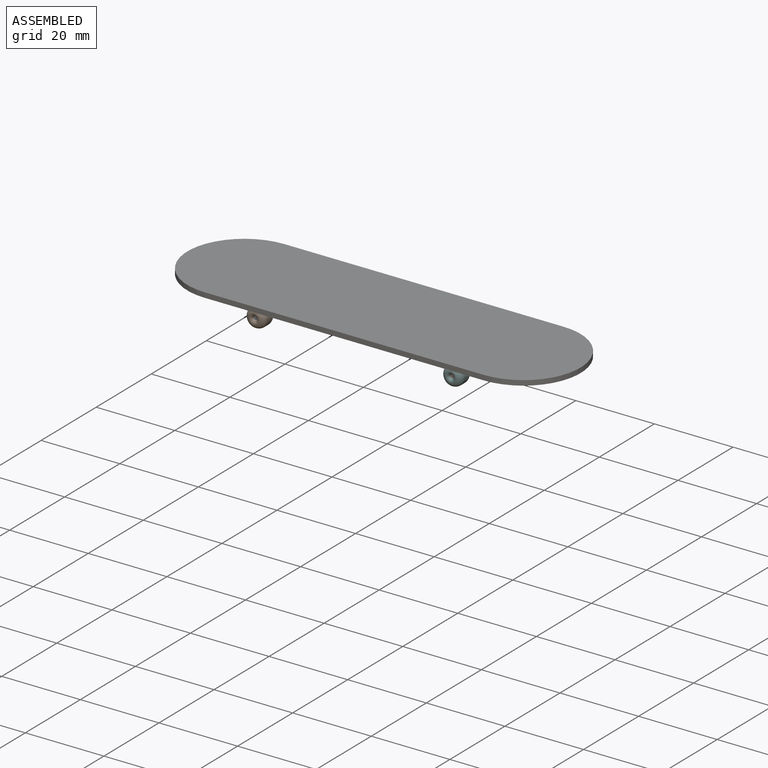
[diagram: assembled view]
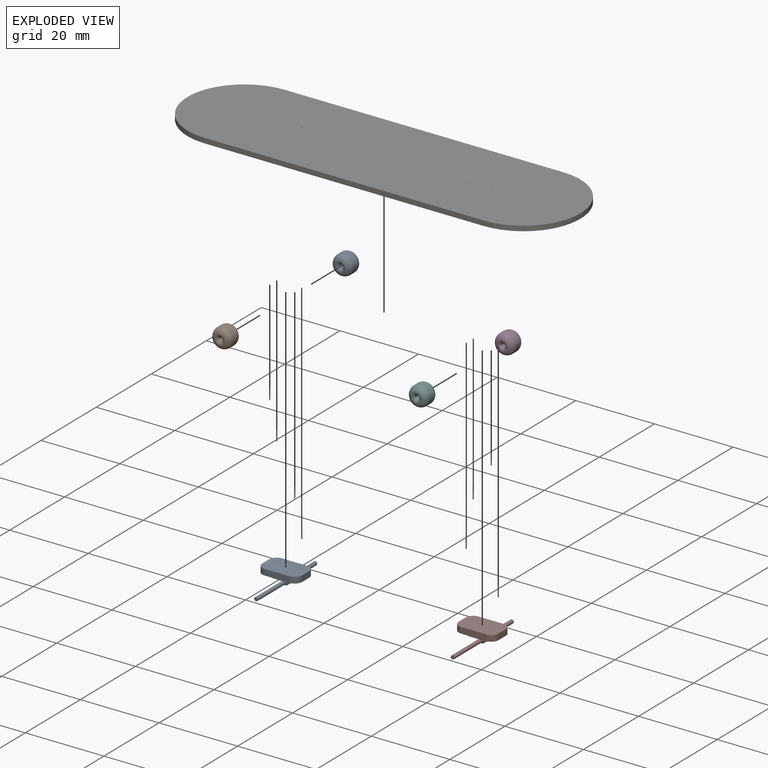
[diagram: exploded view]
GUIDED TOUR — MATED ASSEMBLY (Onshape document f7ee4788c4240e8c17292e89, AutoMate assembly f7ee4788c4240e8c17292e89_a5b2ad27e52c4ec92fd8eeb3_edc7ae30c938dc5633ede1cf_default)

This assembly has 15 components, labeled P0..P14 below (a component is one placed occurrence of a part; the same part can appear more than once), held together by 20 mates. A mate is a constraint between two components; its type names the relative motion it leaves free:
  FASTENED — locks the two components together rigidly (no relative motion),
  REVOLUTE — leaves rotation about the listed axis free (a hinge).
Axis/direction vectors are unit vectors and 'through' points are millimeter coordinates, both in the assembly's world frame.

MATES
  1. FASTENED "Fastened 5": P7 <-> P13, direction (0.000, 0.000, -1.000) through (-2.57, 7.27, 27.58) mm
  2. FASTENED "Fastened 15": P0 <-> P2, direction (0.000, 0.000, -1.000) through (-52.57, 9.81, 27.58) mm
  3. REVOLUTE "Revolute 3": P9 <-> P0, axis (0.000, 1.000, 0.000) through (-55.74, -2.25, 25.88) mm
  4. FASTENED "Fastened 14": P0 <-> P12, direction (0.000, 0.000, -1.000) through (-58.92, 7.27, 27.58) mm
  5. FASTENED "Fastened 7": P7 <-> P6, direction (0.000, 0.000, -1.000) through (-8.92, 7.27, 27.58) mm
  6. FASTENED "Fastened 10": P12 <-> P14, direction (0.000, 0.000, 1.000) through (-58.92, 7.27, 30.37) mm
  7. FASTENED "Fastened 3": P10 <-> P14, direction (0.000, 0.000, 1.000) through (-8.92, 9.81, 30.37) mm
  8. FASTENED "Fastened 9": P4 <-> P14, direction (0.000, 0.000, 1.000) through (-58.92, 9.81, 30.37) mm
  9. FASTENED "Fastened 8": P7 <-> P10, direction (0.000, 0.000, -1.000) through (-8.92, 9.81, 27.58) mm
  10. REVOLUTE "Revolute 1": P8 <-> P0, axis (0.000, 1.000, 0.000) through (-55.74, 19.34, 25.93) mm
  11. FASTENED "Fastened 11": P14 <-> P3, direction (0.000, 0.000, 1.000) through (-52.57, 7.27, 30.37) mm
  12. FASTENED "Fastened 4": P6 <-> P14, direction (0.000, 0.000, 1.000) through (-8.92, 7.27, 30.37) mm
  13. FASTENED "Fastened 16": P0 <-> P3, direction (0.000, 0.000, -1.000) through (-52.57, 7.27, 27.58) mm
  14. REVOLUTE "Revolute 4": P5 <-> P7, axis (0.000, 1.000, 0.000) through (-5.74, -2.25, 25.88) mm
  15. REVOLUTE "Revolute 2": P11 <-> P7, axis (0.000, 1.000, 0.000) through (-5.74, 19.34, 25.93) mm
  16. FASTENED "Fastened 1": P14 <-> P1, direction (0.000, 0.000, 1.000) through (-2.57, 9.81, 30.37) mm
  17. FASTENED "Fastened 12": P2 <-> P14, direction (0.000, 0.000, 1.000) through (-52.57, 9.81, 30.37) mm
  18. FASTENED "Fastened 13": P0 <-> P4, direction (0.000, 0.000, -1.000) through (-58.92, 9.81, 27.58) mm
  19. FASTENED "Fastened 6": P7 <-> P1, direction (0.000, 0.000, -1.000) through (-2.57, 9.81, 27.58) mm
  20. FASTENED "Fastened 2": P13 <-> P14, direction (0.000, 0.000, 1.000) through (-2.57, 7.27, 30.37) mm

ASSEMBLY ORDER
  1. P11 — the base component [order verified]
  2. P8 [order verified]
  3. P7 [order verified]
  4. P0 [order verified]
  5. P9 [order verified]
  6. P5 [order verified]
  7. P12 [order verified]
  8. P4 [order verified]
  9. P3 [order verified]
  10. P2 [order verified]
  11. P13 [order verified]
  12. P10 [order verified]
  13. P6 [order verified]
  14. P1 [order verified]
  15. P14 [order verified]
Order-tag legend:
  [order verified] — this step's position reverses a verified removal order: the component was checked to insert without passing through the ones already placed.

Of the 15 components, 8 carry the full construction recipe — the FeatureScript program that regenerates the part's solid from scratch; the rest are supplied as boundary geometry only.
Because this assembly has more than 12 components, the tour below covers the 12 most significant ones individually (every recipe-attached component first, then the largest by part volume), in assembly order; the remaining 3 are summarized together in a grouped section at the end.
Each toured component is shown spotlighted twice — in the assembled view, then in the exploded view, where a leader line traces a displaced component back to its assembled socket (saturated green if recipe-attached, orange if geometry-only; every other component desaturated gray) — followed by its recipe or geometry summary and the mates that hold it.
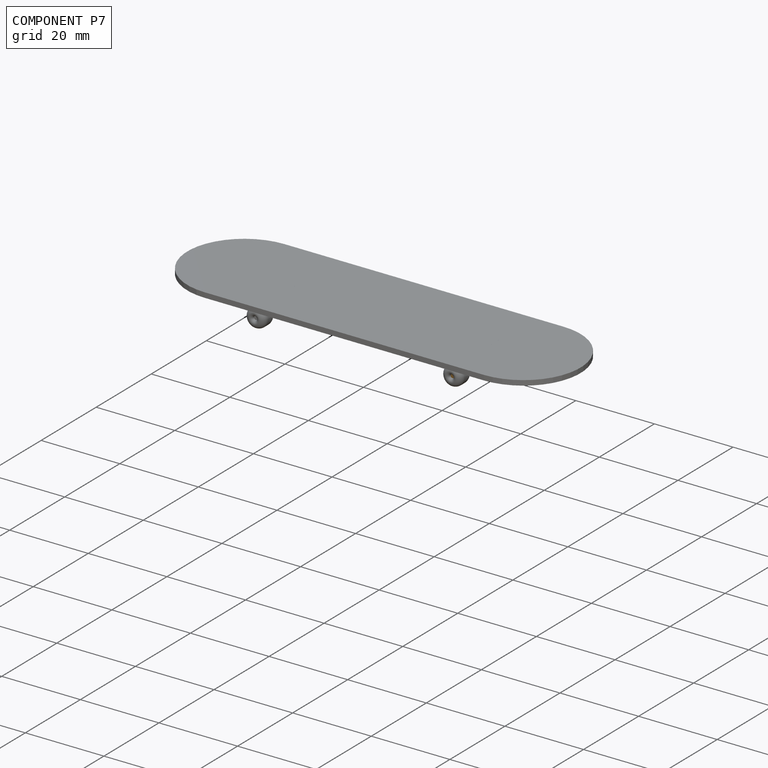
[diagram: component P7 — assembled]
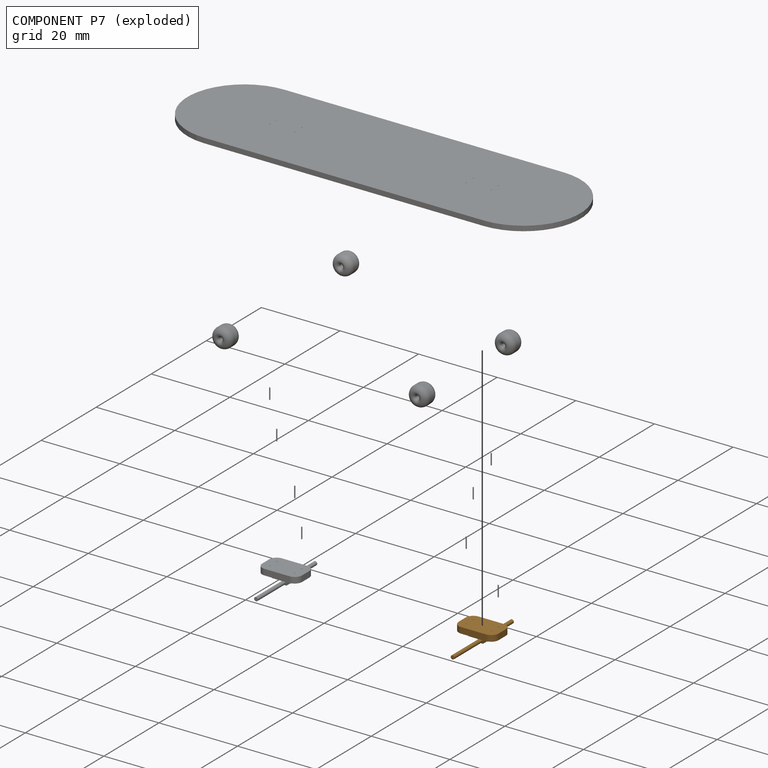
[diagram: component P7 — exploded]
COMPONENT P7 — geometry summary (no construction recipe available for this part):
  bounding box: 21.6 x 10.2 x 3.8 mm
  B-rep topology: 1 solid, 28 faces, 132 edges
  volume: 125 mm^3 (15% of its bounding box)
  symmetry: 2-fold rotationally symmetric about the z axis; mirror-symmetric across its x mid-plane, y mid-plane
Held by: FASTENED mate "Fastened 5" to P13; FASTENED mate "Fastened 7" to P6; FASTENED mate "Fastened 8" to P10; REVOLUTE mate "Revolute 4" to P5; REVOLUTE mate "Revolute 2" to P11; FASTENED mate "Fastened 6" to P1.
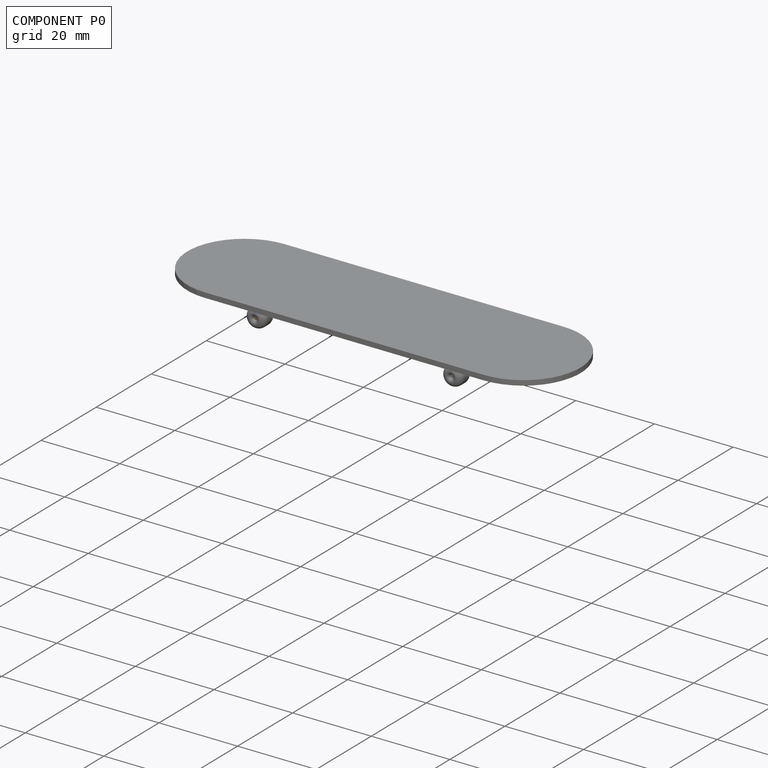
[diagram: component P0 — assembled]
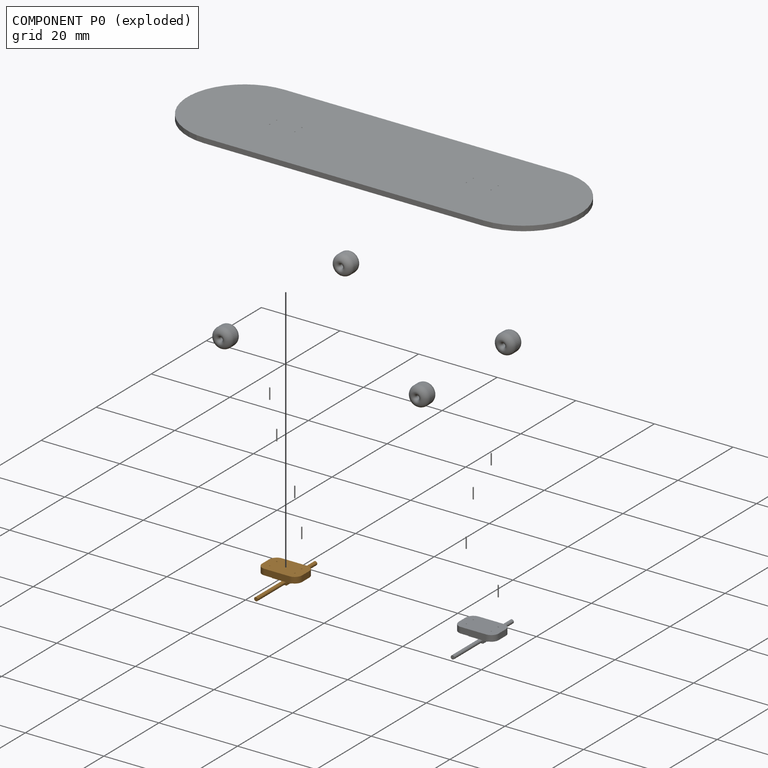
[diagram: component P0 — exploded]
COMPONENT P0 — geometry summary (no construction recipe available for this part):
  bounding box: 21.6 x 10.2 x 3.8 mm
  B-rep topology: 1 solid, 28 faces, 132 edges
  volume: 125 mm^3 (15% of its bounding box)
  symmetry: 2-fold rotationally symmetric about the z axis; mirror-symmetric across its x mid-plane, y mid-plane
Held by: FASTENED mate "Fastened 15" to P2; REVOLUTE mate "Revolute 3" to P9; FASTENED mate "Fastened 14" to P12; REVOLUTE mate "Revolute 1" to P8; FASTENED mate "Fastened 16" to P3; FASTENED mate "Fastened 13" to P4.
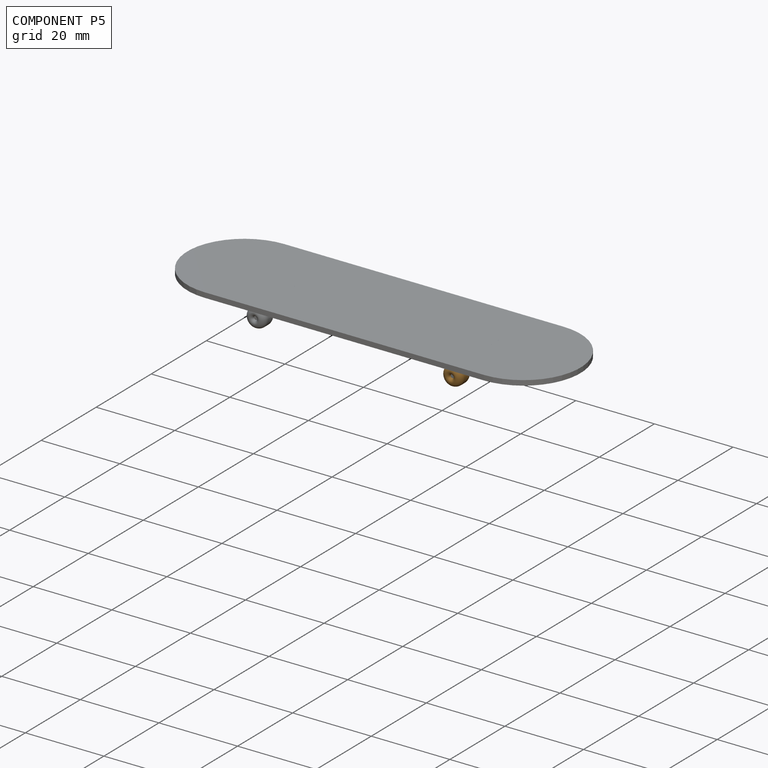
[diagram: component P5 — assembled]
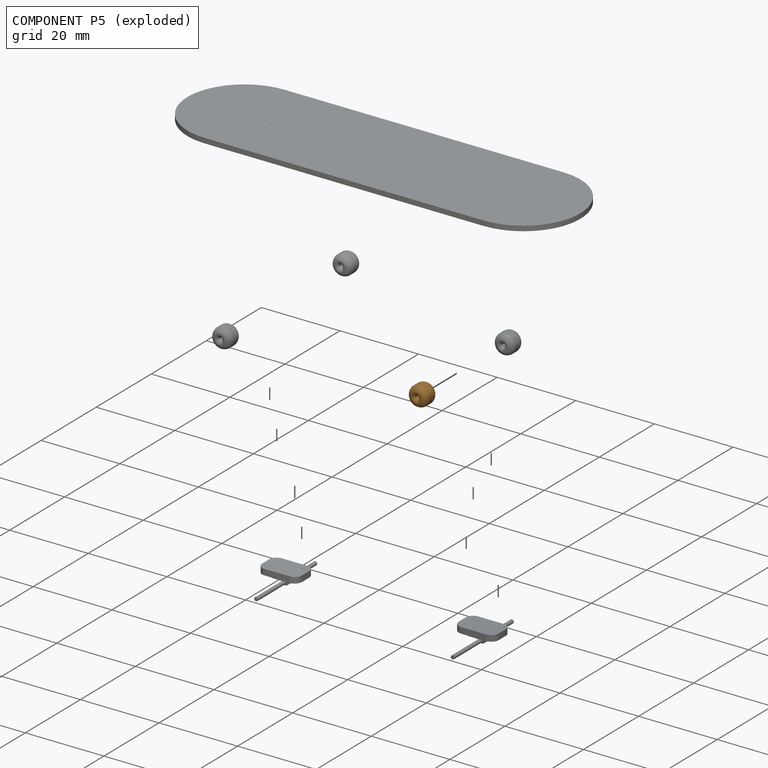
[diagram: component P5 — exploded]
COMPONENT P5 — geometry summary (no construction recipe available for this part):
  bounding box: 5.1 x 5.1 x 4.4 mm
  B-rep topology: 1 solid, 6 faces, 26 edges
  volume: 72 mm^3 (64% of its bounding box)
  symmetry: revolution-symmetric about the x axis through its bounding-box center; 2-fold rotationally symmetric about the y axis; 2-fold rotationally symmetric about the z axis; mirror-symmetric across its x mid-plane, y mid-plane, z mid-plane
Held by: REVOLUTE mate "Revolute 4" to P7.
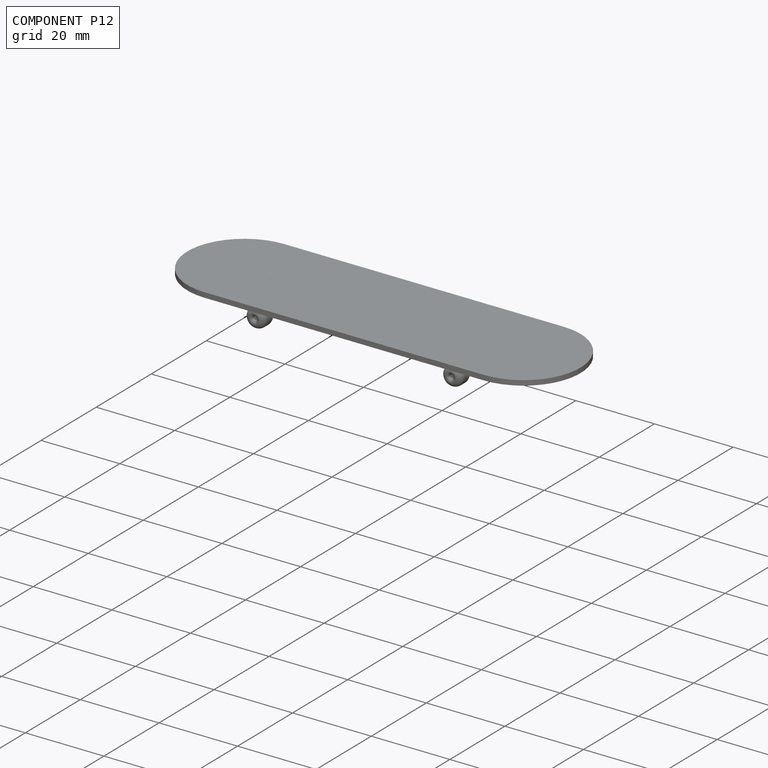
[diagram: component P12 — assembled]
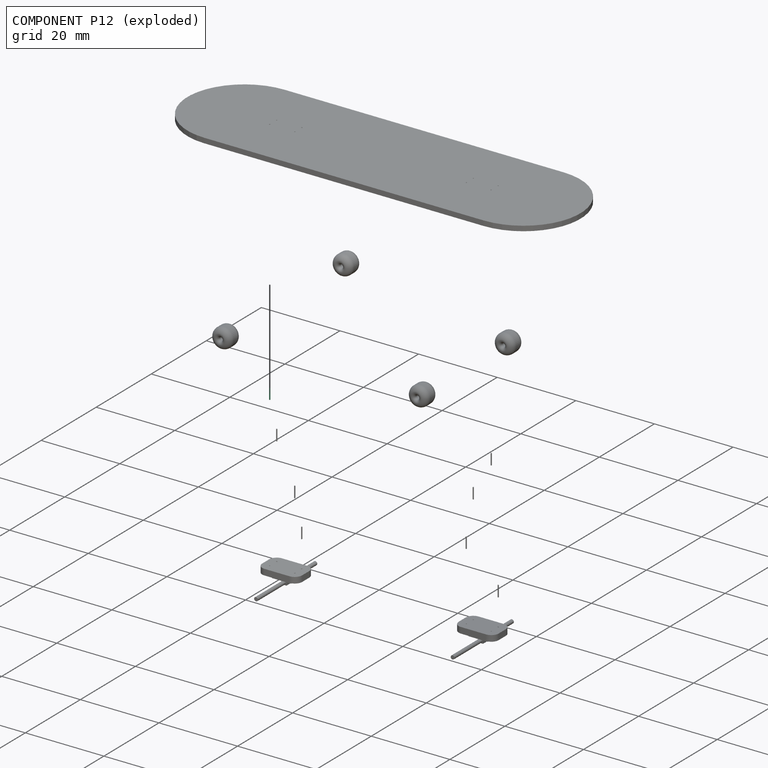
[diagram: component P12 — exploded]
COMPONENT P12 — same part as P1 (CADFS 00727369); its construction recipe is shown at P1.
Held by: FASTENED mate "Fastened 14" to P0; FASTENED mate "Fastened 10" to P14.
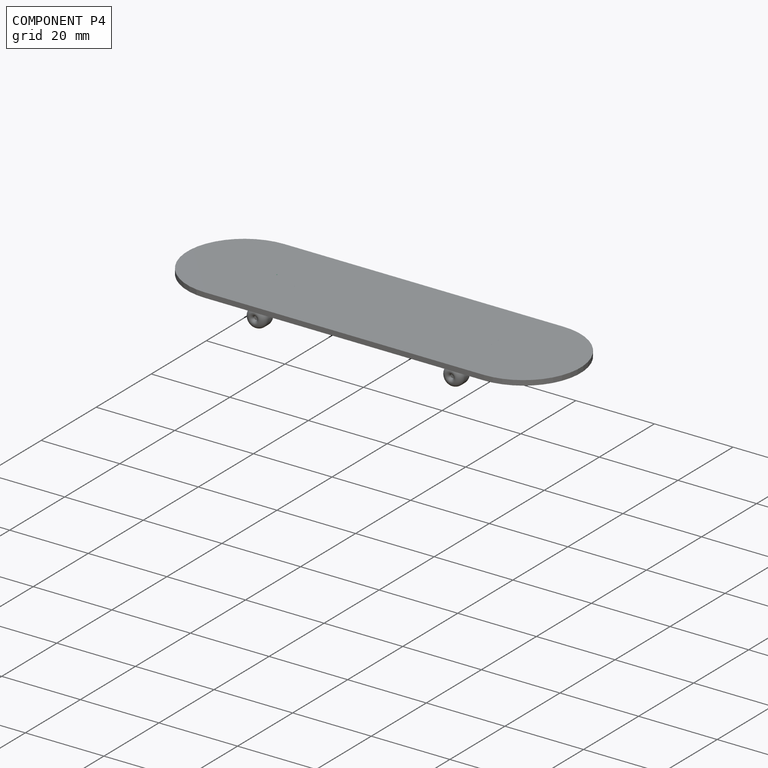
[diagram: component P4 — assembled]
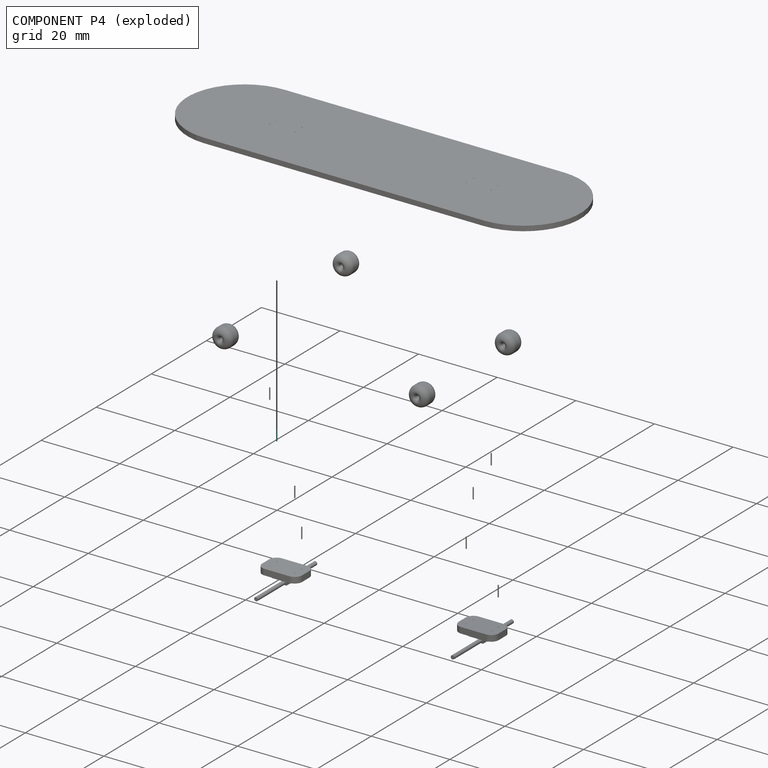
[diagram: component P4 — exploded]
COMPONENT P4 — same part as P1 (CADFS 00727369); its construction recipe is shown at P1.
Held by: FASTENED mate "Fastened 9" to P14; FASTENED mate "Fastened 13" to P0.
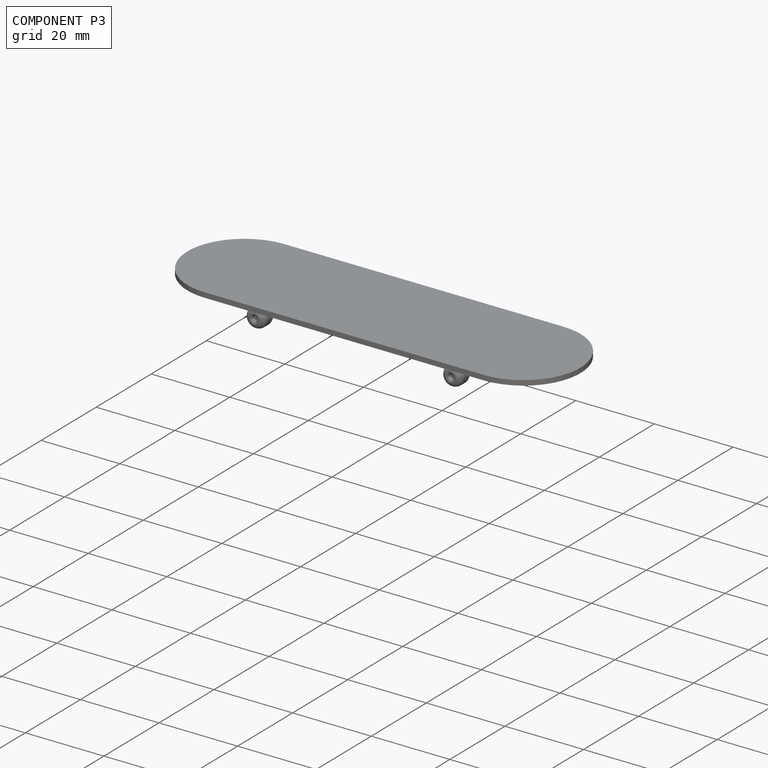
[diagram: component P3 — assembled]
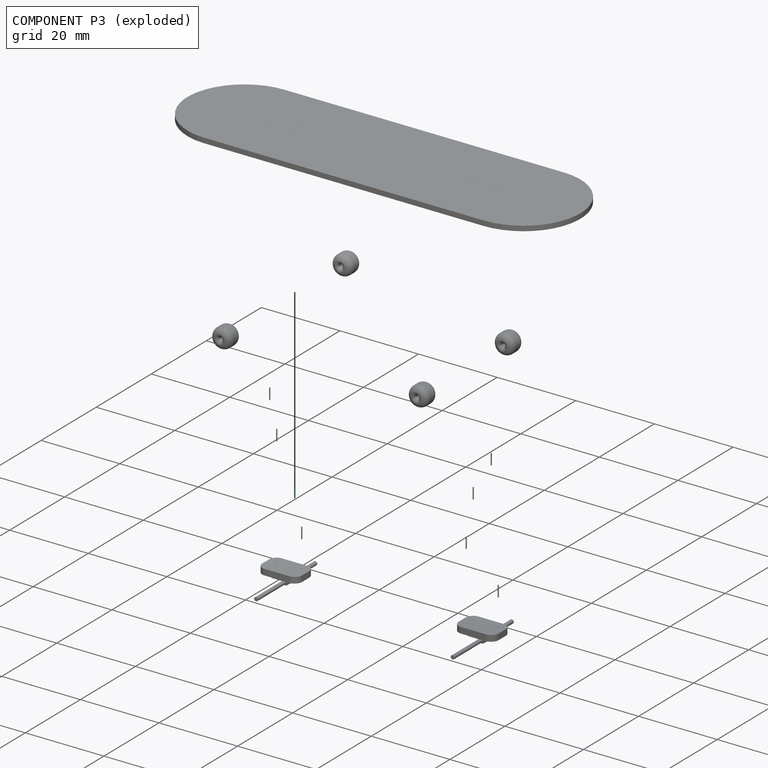
[diagram: component P3 — exploded]
COMPONENT P3 — same part as P1 (CADFS 00727369); its construction recipe is shown at P1.
Held by: FASTENED mate "Fastened 11" to P14; FASTENED mate "Fastened 16" to P0.
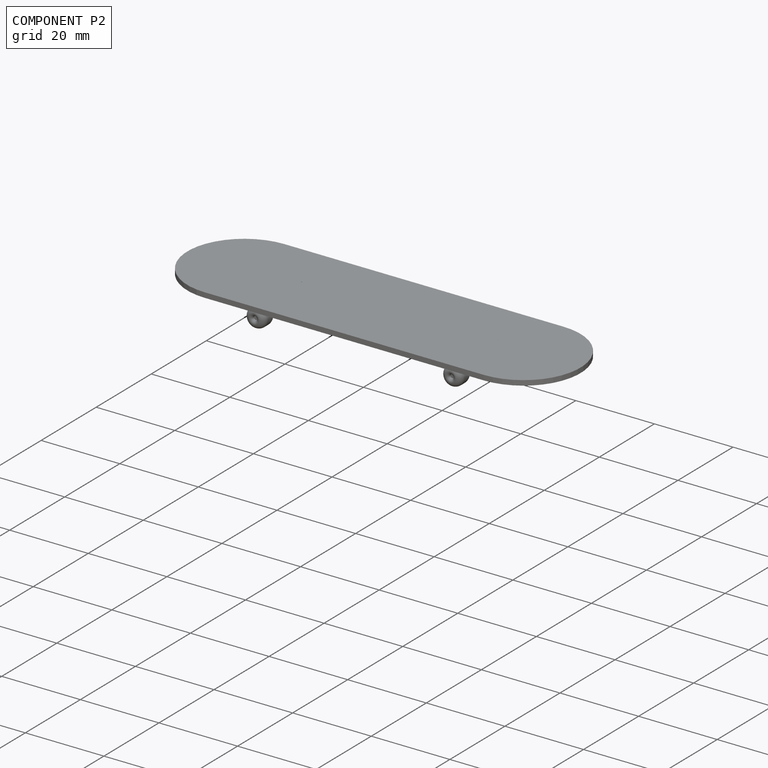
[diagram: component P2 — assembled]
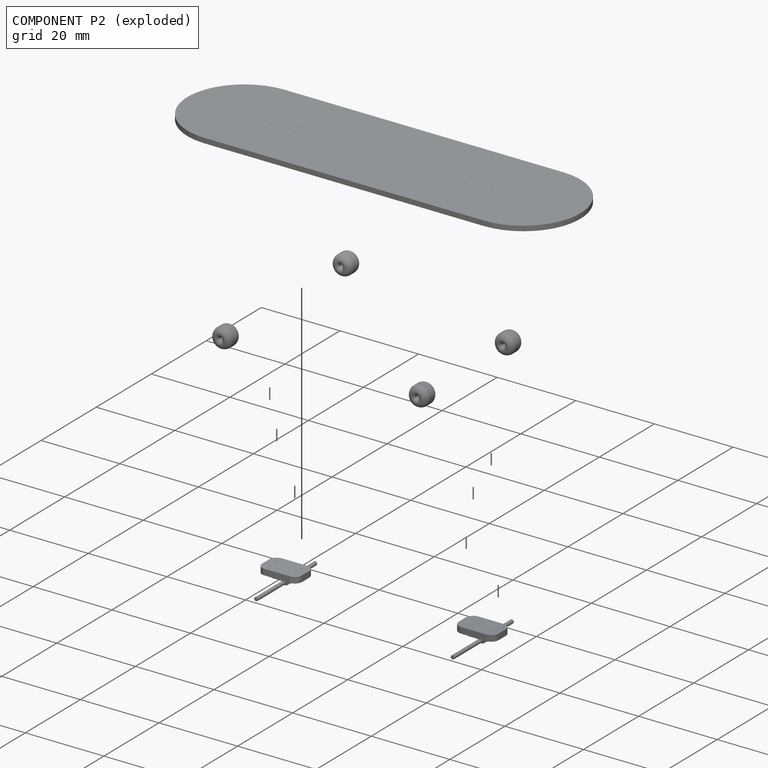
[diagram: component P2 — exploded]
COMPONENT P2 — same part as P1 (CADFS 00727369); its construction recipe is shown at P1.
Held by: FASTENED mate "Fastened 15" to P0; FASTENED mate "Fastened 12" to P14.
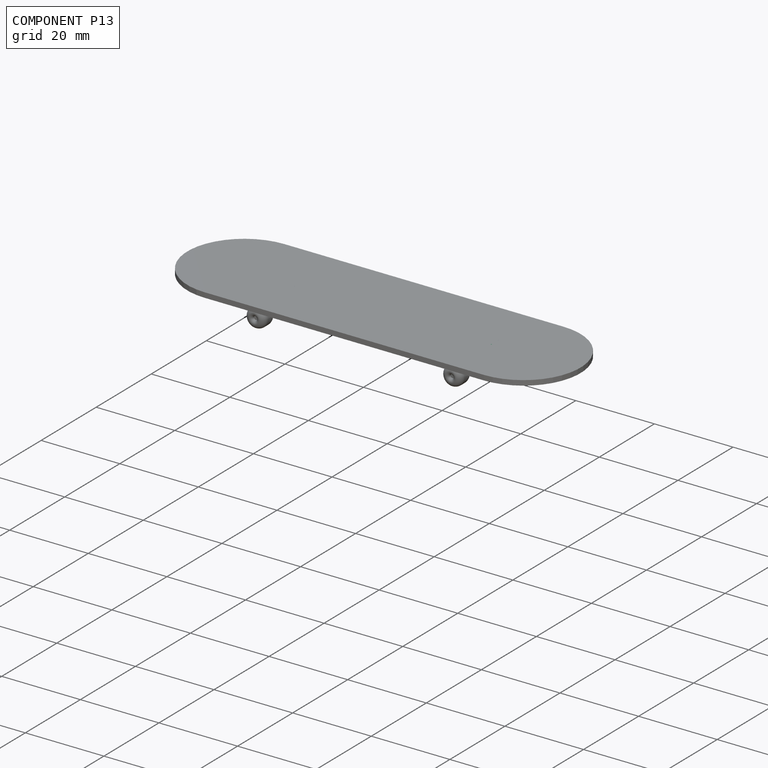
[diagram: component P13 — assembled]
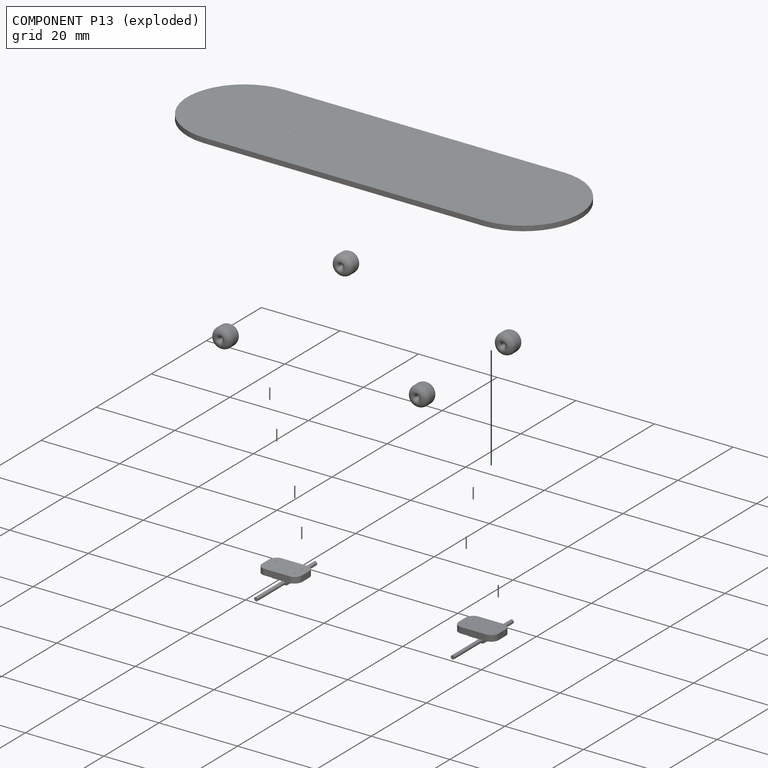
[diagram: component P13 — exploded]
COMPONENT P13 — same part as P1 (CADFS 00727369); its construction recipe is shown at P1.
Held by: FASTENED mate "Fastened 5" to P7; FASTENED mate "Fastened 2" to P14.
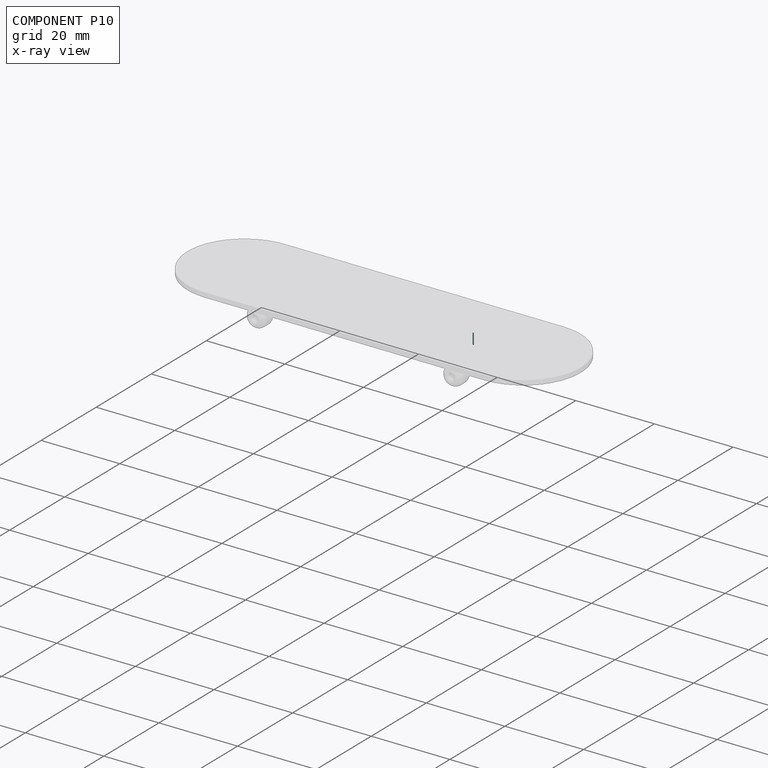
[diagram: component P10 — x-ray view]
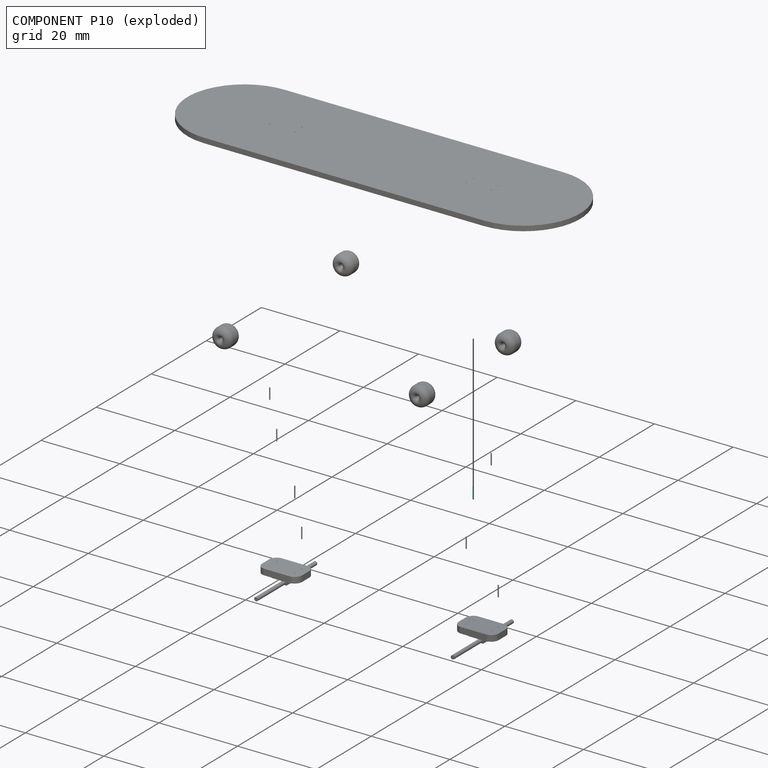
[diagram: component P10 — exploded]
COMPONENT P10 — same part as P1 (CADFS 00727369); its construction recipe is shown at P1.
Held by: FASTENED mate "Fastened 3" to P14; FASTENED mate "Fastened 8" to P7.
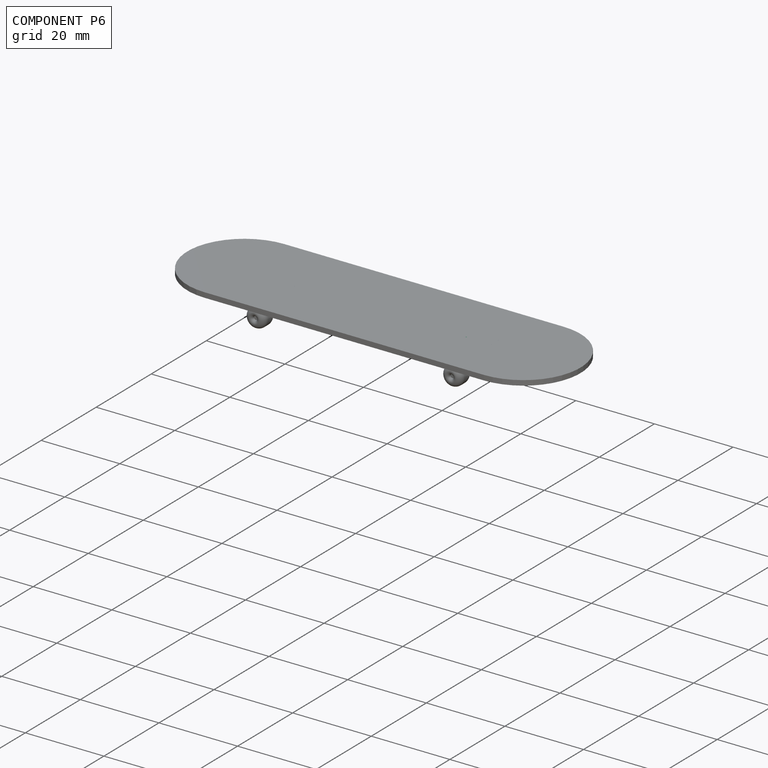
[diagram: component P6 — assembled]
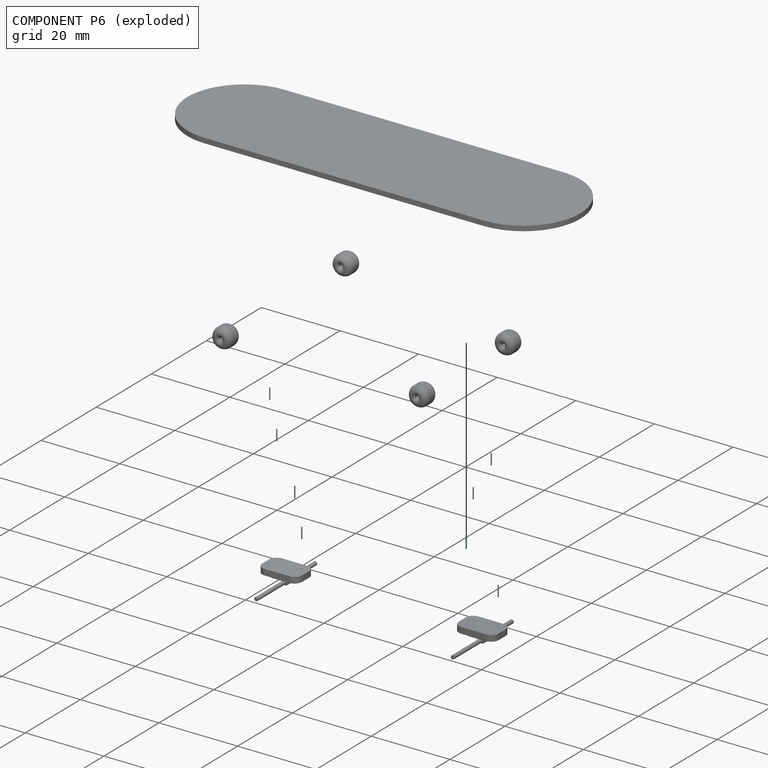
[diagram: component P6 — exploded]
COMPONENT P6 — same part as P1 (CADFS 00727369); its construction recipe is shown at P1.
Held by: FASTENED mate "Fastened 7" to P7; FASTENED mate "Fastened 4" to P14.
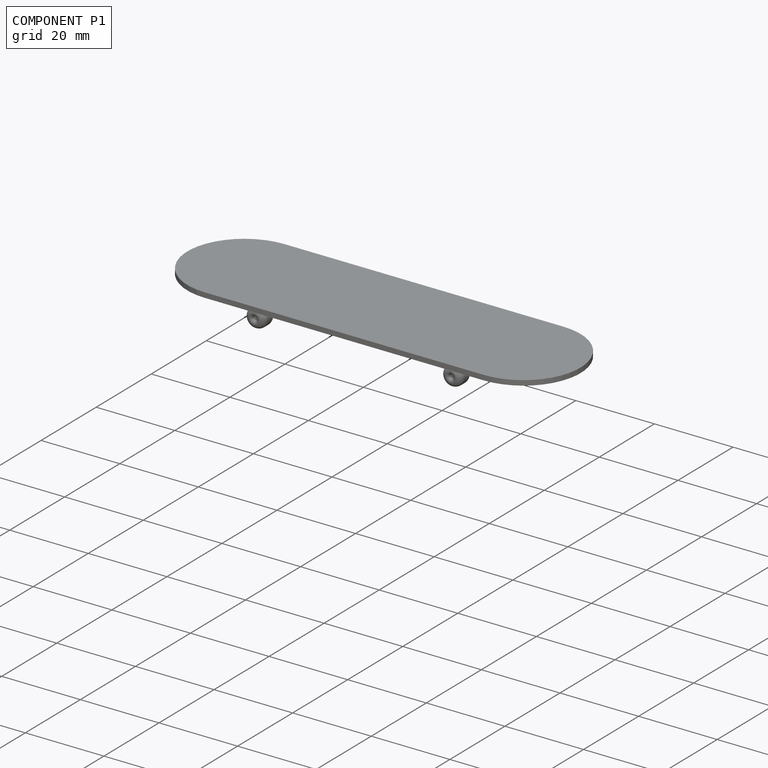
[diagram: component P1 — assembled]
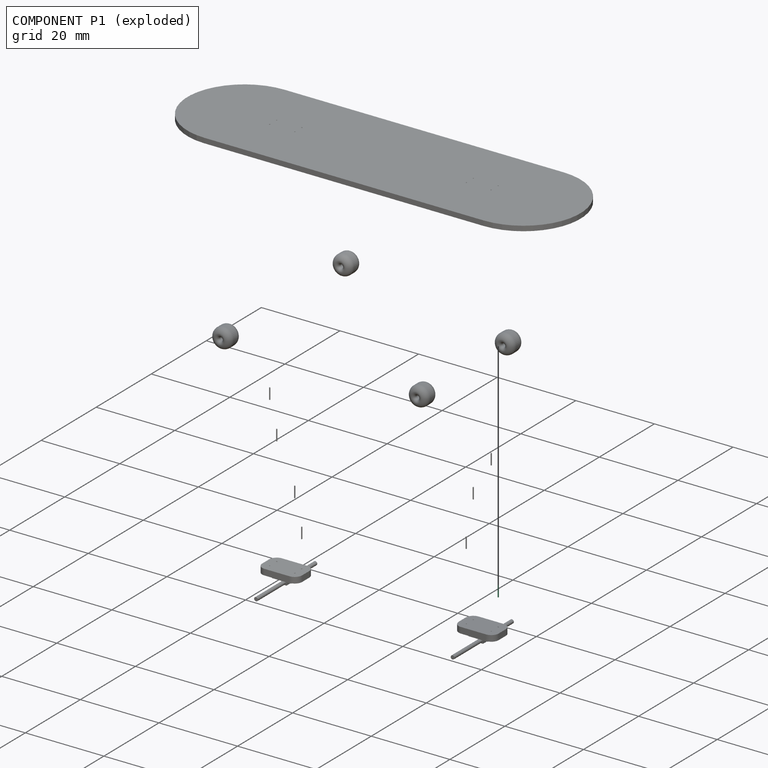
[diagram: component P1 — exploded]
COMPONENT P1 — recipe-attached (CADFS 00727369, mesh-verified: the recipe's output STEP matches this component's geometry to below the mesh-comparison resolution (tessellation chordal tolerance ~0.005 mm)).
Held by: FASTENED mate "Fastened 1" to P14; FASTENED mate "Fastened 6" to P7.
Construction recipe (FeatureScript — the CAD program that rebuilds this solid; sketch coordinates are in the units given by the * unit suffixes, e.g. mm):

FeatureScript 1511;
import(path : "onshape/std/geometry.fs", version : "1511.0");
import(path : "onshape/std/common.fs", version : "1511.0");
const mm = millimeter;
const VERTEX = EntityType.VERTEX;
const EDGE = EntityType.EDGE;
const FACE = EntityType.FACE;
const BODY = EntityType.BODY;
function v(x, y){return vector(x, y);}
function OD(order){return orderDisambiguation(order);}
function OSD(set){return originalSetDisambiguation(set);}
function TD(topology){return topologyDisambiguation(topology);}
function TDD(query){return trueDependencyDisambiguation(query);}
function sQuery(a, b, c) {return sketchEntityQuery(a, b, c);}

annotation { "Feature Type Name" : "Feature", "Feature Type Description" : "" }
export const myFeature = defineFeature(function(context is Context, id is Id, definition is map)
    precondition{}
    {
        {
            var Q0;
            Q0=qCreatedBy(makeId("Top.planeOp"),FACE);
            var sketch = newSketch(context, id + "F0", { "sketchPlane" : qUnion([Q0])});
            skCircle(sketch, "E0", {"center": v(-66.75, -47.73) * mm, "radius": 0.13 * mm});
            skSolve(sketch);
        }
        {
            var Q0;
            Q0=makeQuery(id+"F0.imprint","IMPRINT",FACE,{"disambiguationData":[TD([[makeQuery(id+"F0.imprint","IMPRINT",EDGE,{"derivedFrom":sQuery(id+"F0.wireOp",EDGE,"E0")}),1.0]])]});
            extrude(context, id + "F1", {"entities" : qUnion([Q0]), "depth" : 2.8 * mm, "offsetDistance" : 25.4 * mm});
        }
    });
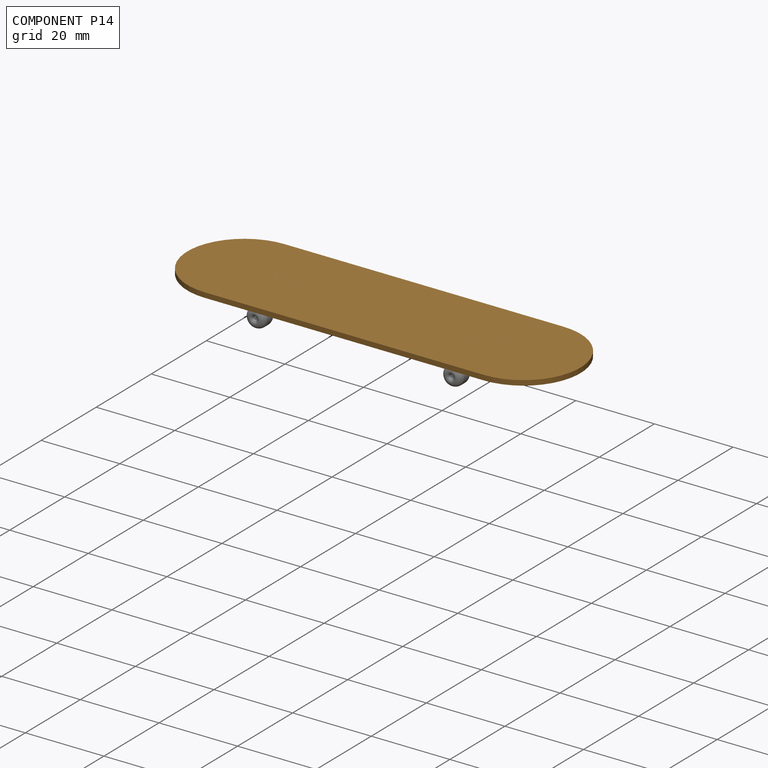
[diagram: component P14 — assembled]
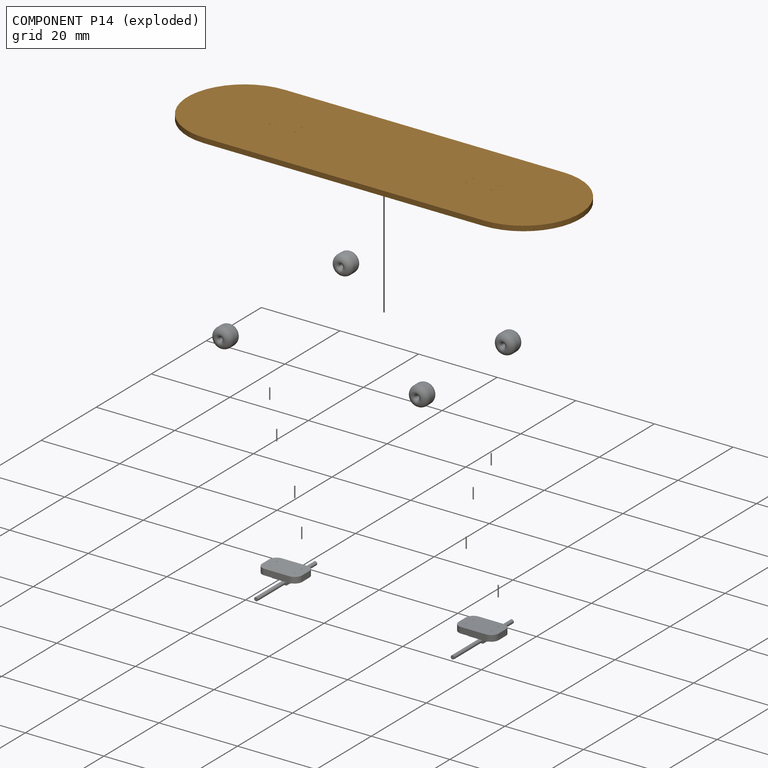
[diagram: component P14 — exploded]
COMPONENT P14 — geometry summary (no construction recipe available for this part):
  bounding box: 100.0 x 29.0 x 1.3 mm
  B-rep topology: 1 solid, 14 faces, 72 edges
  volume: 3453 mm^3 (94% of its bounding box)
  symmetry: 2-fold rotationally symmetric about the x axis; 2-fold rotationally symmetric about the y axis; 2-fold rotationally symmetric about the z axis; mirror-symmetric across its x mid-plane, y mid-plane, z mid-plane
Held by: FASTENED mate "Fastened 10" to P12; FASTENED mate "Fastened 3" to P10; FASTENED mate "Fastened 9" to P4; FASTENED mate "Fastened 11" to P3; FASTENED mate "Fastened 4" to P6; FASTENED mate "Fastened 1" to P1; FASTENED mate "Fastened 12" to P2; FASTENED mate "Fastened 2" to P13.
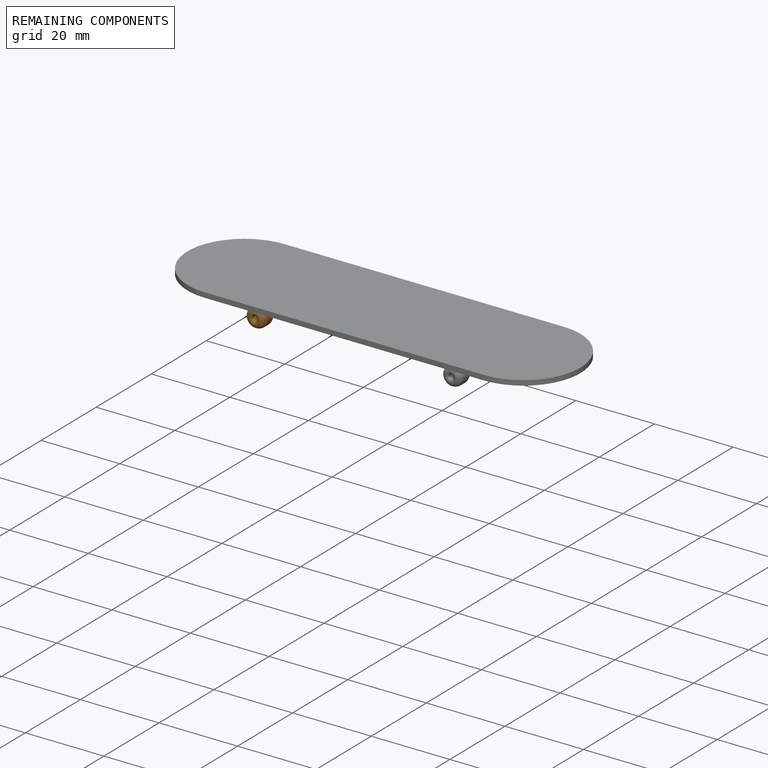
[diagram: remaining components — assembled]
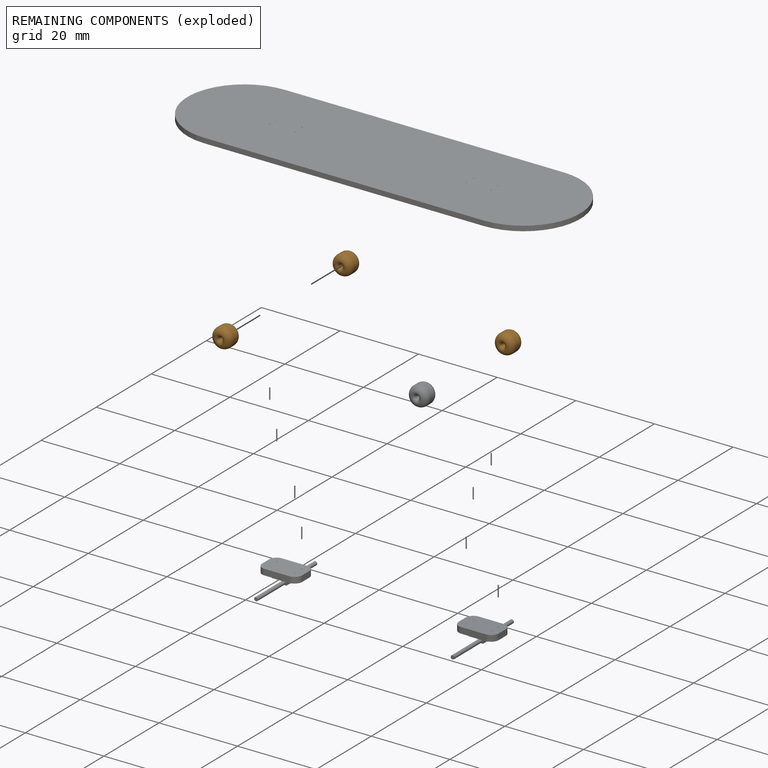
[diagram: remaining components — exploded]
REMAINING COMPONENTS (grouped) — the 3 components below fall outside the per-component tour by the significance rule stated above; both spotlight views highlight the whole group.
  P11: bounding box 5.1 x 5.1 x 4.4 mm, volume 72 mm^3. Held by: REVOLUTE mate "Revolute 2" to P7.
  P8: bounding box 5.1 x 5.1 x 4.4 mm, volume 72 mm^3. Held by: REVOLUTE mate "Revolute 1" to P0.
  P9: bounding box 5.1 x 5.1 x 4.4 mm, volume 72 mm^3. Held by: REVOLUTE mate "Revolute 3" to P0.
PROVENANCE & LICENSES
Assembly (occurrences, transforms, mates, per-part STEP geometry): AutoMate dataset, Zenodo record 7776208, CC0.
Construction recipes: CADFS (HuggingFace VladPyatov/CADFS, CC-BY-4.0, layered over the ABC dataset), FeatureScript reconstruction programs keyed by ABC model id.
Join: ABC meta listings map ABC model id -> Onshape documentId; within a shared document, parts are matched by geometric signature (bounding-box dims + volume at 0.1% relative tolerance, exact B-rep face/solid counts).
Verification: 8 of this assembly's 15 components carry a recipe attachment, and every attachment is mesh-verified: the CADFS STEP and the AutoMate member STEP were compared as meshes in their shared local frame (symmetric sampled-point-to-mesh distance); worst across the 8 attachments: below the mesh-comparison resolution (tessellation chordal tolerance ~0.005 mm) on a 3 mm part.
Renders: orthographic iso camera (az 35 / el 25); the floor grid conveys scale (grid pitch printed in each image; no ruler). In the exploded view each component is displaced by its stored offset vector: the offsets alone carry the explosion direction (mate normal/axis signs are not orientation cues and do not encode it), and separation distances are assigned per mate-chain, not proportionally to assembly-order depth.
